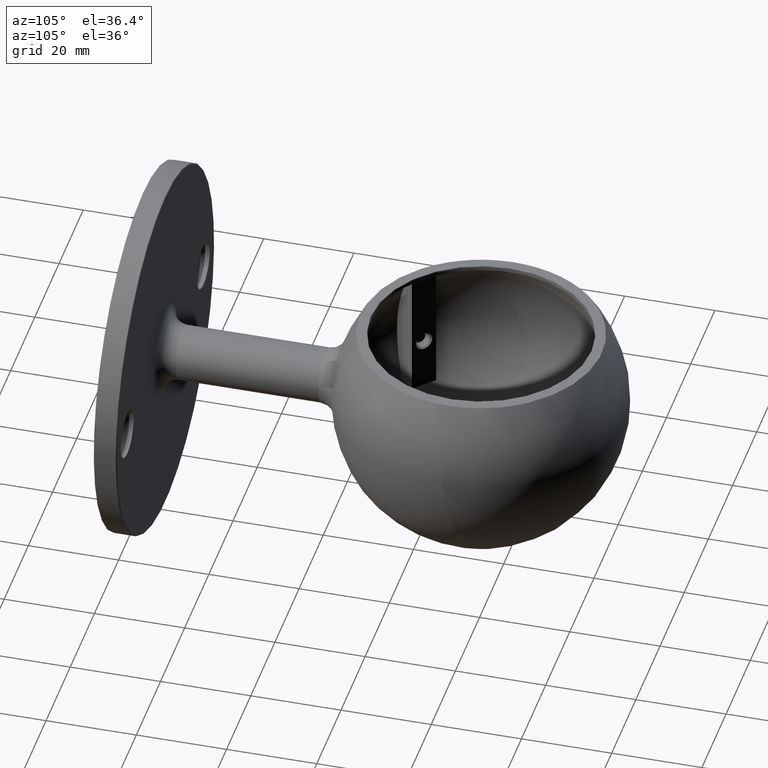
[diagram: clean part render]
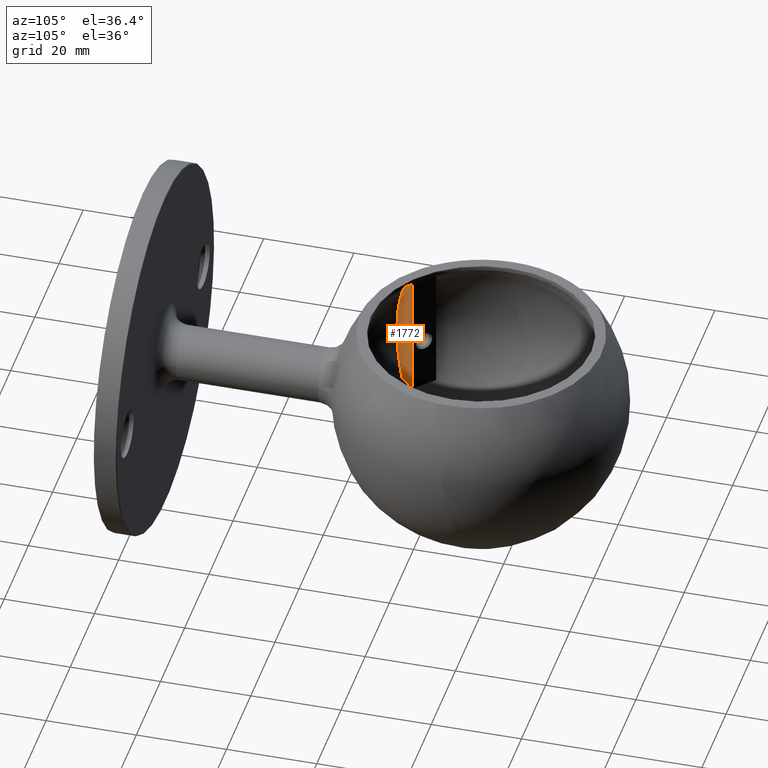
[diagram: same view with one face highlighted and labeled with its STEP entity id]
A machine part, auxiliary view. The second image highlights one B-rep face of the part: STEP entity #1772.
In plain terms, the highlighted planar face has unit normal (-0.7071, 0.7071, -0).
Its self-contained STEP definition (entity closure, byte-faithful):
#236 = CARTESIAN_POINT ( 'NONE',  ( -499995.7573593129637, -499925.0000000054715, -11.49999999999999645 ) ) ;
#848 = DIRECTION ( 'NONE',  ( -1.239088197126291063E-16, 0.000000000000000000, 1.000000000000000000 ) ) ;
#1315 = CARTESIAN_POINT ( 'NONE',  ( -499995.7573593129637, -499925.0000000054715, -11.49999999999999645 ) ) ;
#1413 = AXIS2_PLACEMENT_3D ( 'NONE', #9925, #9962, #6526 ) ;
#1772 = ADVANCED_FACE ( 'NONE', ( #3246 ), #6364, .F. ) ;
#1806 = VECTOR ( 'NONE', #6546, 1000.000000000000000 ) ;
#1950 = VERTEX_POINT ( 'NONE', #7448 ) ;
#2116 = VERTEX_POINT ( 'NONE', #5983 ) ;
#2179 = VERTEX_POINT ( 'NONE', #5832 ) ;
#2269 = ORIENTED_EDGE ( 'NONE', *, *, #5474, .F. ) ;
#2612 = LINE ( 'NONE', #7396, #1806 ) ;
#2907 = AXIS2_PLACEMENT_3D ( 'NONE', #1315, #7327, #10633 ) ;
#3011 = EDGE_CURVE ( 'NONE', #2116, #1950, #4474, .T. ) ;
#3246 = FACE_OUTER_BOUND ( 'NONE', #10246, .T. ) ;
#3419 = CARTESIAN_POINT ( 'NONE',  ( -15.16744045645133809, 55.58991885642918618, -11.49999999999999645 ) ) ;
#3820 = VECTOR ( 'NONE', #848, 1000.000000000000000 ) ;
#3971 = VERTEX_POINT ( 'NONE', #6684 ) ;
#4474 = CIRCLE ( 'NONE', #1413, 30.85449724107887448 ) ;
#4645 = LINE ( 'NONE', #3419, #3820 ) ;
#4750 = VECTOR ( 'NONE', #7968, 1000.000000000000000 ) ;
#5474 = EDGE_CURVE ( 'NONE', #1950, #2179, #2612, .T. ) ;
#5832 = CARTESIAN_POINT ( 'NONE',  ( -15.16744045645135586, 55.58991885642918618, 16.50000000000000000 ) ) ;
#5983 = CARTESIAN_POINT ( 'NONE',  ( -18.12404949743470084, 52.63330981538534559, -11.49999999999999645 ) ) ;
#6129 = EDGE_CURVE ( 'NONE', #3971, #2179, #4645, .T. ) ;
#6364 = PLANE ( 'NONE',  #2907 ) ;
#6526 = DIRECTION ( 'NONE',  ( -0.7071067811865436870, -0.7071067811865514585, 0.000000000000000000 ) ) ;
#6546 = DIRECTION ( 'NONE',  ( 0.7071067811865437980, 0.7071067811865513475, 0.000000000000000000 ) ) ;
#6684 = CARTESIAN_POINT ( 'NONE',  ( -15.16744045645133809, 55.58991885642918618, -11.49999999999999645 ) ) ;
#6941 = ORIENTED_EDGE ( 'NONE', *, *, #8436, .T. ) ;
#7327 = DIRECTION ( 'NONE',  ( -0.7071067811865513475, 0.7071067811865437980, -8.761676666762186355E-17 ) ) ;
#7396 = CARTESIAN_POINT ( 'NONE',  ( -499995.7573593129637, -499925.0000000054715, 16.50000000000000000 ) ) ;
#7442 = ORIENTED_EDGE ( 'NONE', *, *, #6129, .T. ) ;
#7448 = CARTESIAN_POINT ( 'NONE',  ( -16.31437872099316877, 54.44298059182689542, 16.50000000000000355 ) ) ;
#7968 = DIRECTION ( 'NONE',  ( 0.7071067811865437980, 0.7071067811865513475, 0.000000000000000000 ) ) ;
#8205 = LINE ( 'NONE', #236, #4750 ) ;
#8436 = EDGE_CURVE ( 'NONE', #2116, #3971, #8205, .T. ) ;
#9925 = CARTESIAN_POINT ( 'NONE',  ( 2.121320343589879087, 72.87867965641014223, 2.628503000066107694E-16 ) ) ;
#9962 = DIRECTION ( 'NONE',  ( -0.7071067811865513475, 0.7071067811865437980, -8.761676666762187588E-17 ) ) ;
#10246 = EDGE_LOOP ( 'NONE', ( #10604, #6941, #7442, #2269 ) ) ;
#10604 = ORIENTED_EDGE ( 'NONE', *, *, #3011, .F. ) ;
#10633 = DIRECTION ( 'NONE',  ( -0.7071067811865437980, -0.7071067811865513475, 0.000000000000000000 ) ) ;